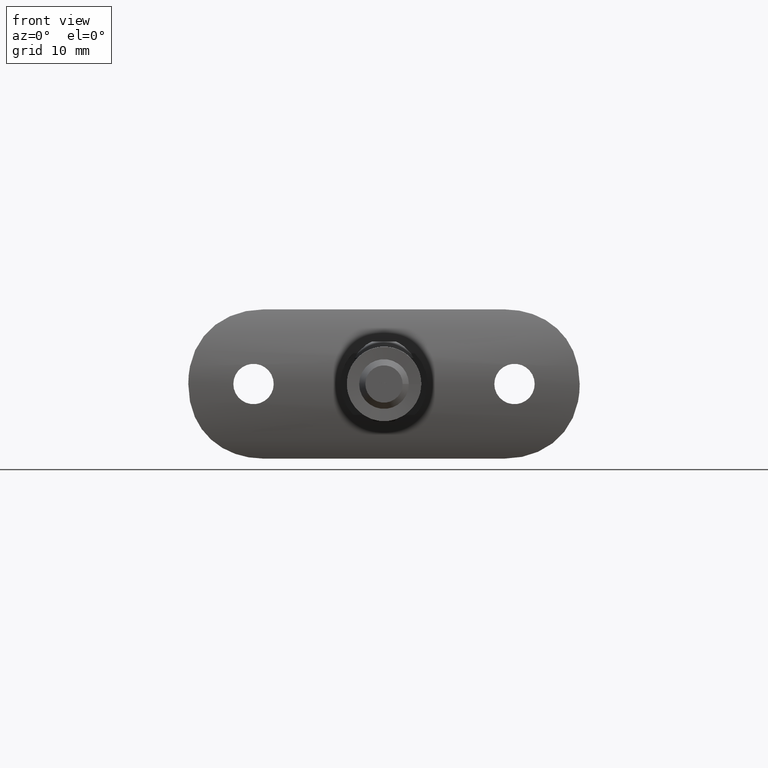
[diagram: clean part render]
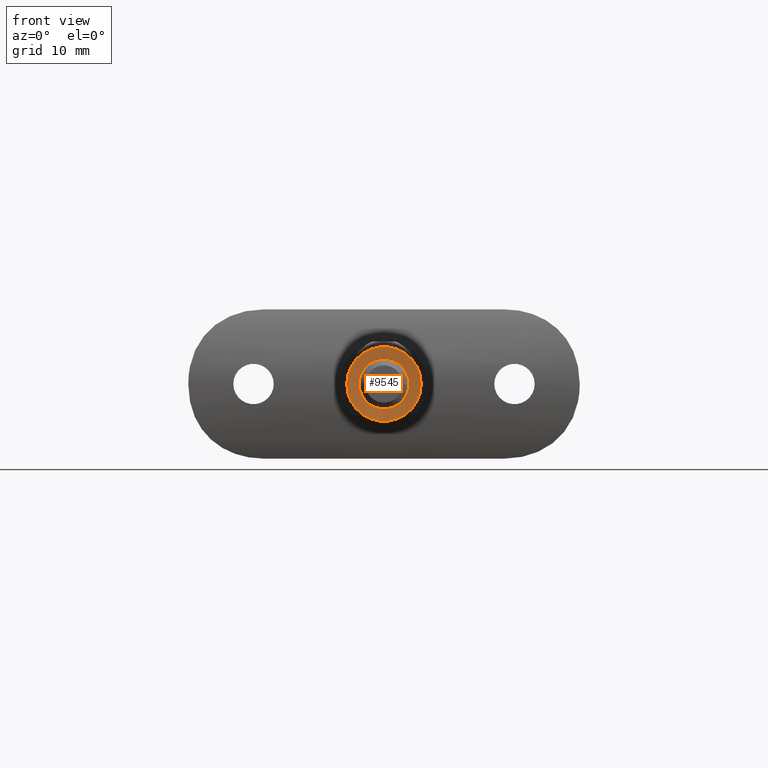
[diagram: same view with one face highlighted and labeled with its STEP entity id]
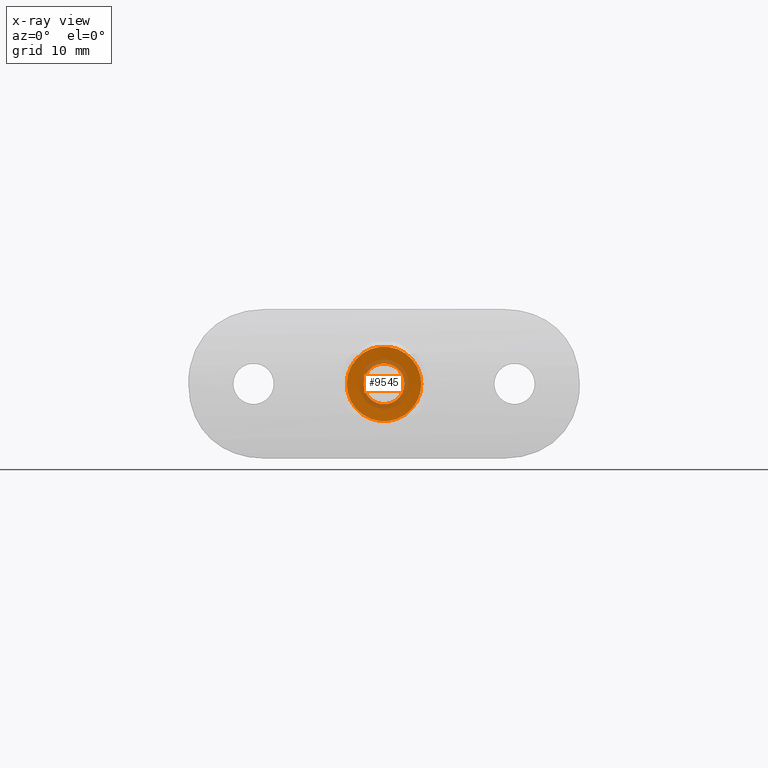
[diagram: x-ray of the same camera — body ghosted, the highlighted face saturated]
A machine part, front view. The second image highlights one B-rep face of the part: STEP entity #9545.
The next image is the same camera in x-ray: the body ghosted, the highlighted face saturated — about 21% of this face is hidden behind the body in this view.
In plain terms, the highlighted conical surface has half-angle 85 deg.
Its self-contained STEP definition (entity closure, byte-faithful):
#514 = EDGE_LOOP ( 'NONE', ( #12717 ) ) ;
#1978 = CARTESIAN_POINT ( 'NONE',  ( 0.000000000000000000, 0.2386875398333721809, 0.000000000000000000 ) ) ;
#2306 = DIRECTION ( 'NONE',  ( -0.000000000000000000, -1.000000000000000000, -0.000000000000000000 ) ) ;
#3344 = CIRCLE ( 'NONE', #12526, 6.000000000000000000 ) ;
#3732 = CARTESIAN_POINT ( 'NONE',  ( 0.000000000000000000, 0.000000000000000000, 0.000000000000000000 ) ) ;
#3788 = DIRECTION ( 'NONE',  ( 0.000000000000000000, 0.000000000000000000, -1.000000000000000000 ) ) ;
#4739 = DIRECTION ( 'NONE',  ( 0.000000000000000000, 0.000000000000000000, -1.000000000000000000 ) ) ;
#5847 = FACE_OUTER_BOUND ( 'NONE', #514, .T. ) ;
#5930 = CARTESIAN_POINT ( 'NONE',  ( 0.000000000000000000, 0.2386875398333721809, 0.000000000000000000 ) ) ;
#6202 = DIRECTION ( 'NONE',  ( -0.000000000000000000, -1.000000000000000000, -0.000000000000000000 ) ) ;
#6305 = EDGE_LOOP ( 'NONE', ( #14989 ) ) ;
#7037 = EDGE_CURVE ( 'NONE', #7807, #7807, #3344, .T. ) ;
#7807 = VERTEX_POINT ( 'NONE', #15833 ) ;
#9004 = AXIS2_PLACEMENT_3D ( 'NONE', #1978, #6202, #15233 ) ;
#9545 = ADVANCED_FACE ( 'NONE', ( #5847, #14438 ), #12089, .F. ) ;
#9550 = VERTEX_POINT ( 'NONE', #13319 ) ;
#9992 = DIRECTION ( 'NONE',  ( -0.000000000000000000, -1.000000000000000000, -0.000000000000000000 ) ) ;
#10753 = EDGE_CURVE ( 'NONE', #9550, #9550, #14410, .T. ) ;
#12089 = CONICAL_SURFACE ( 'NONE', #15048, 3.271788935686913202, 1.483529864195186843 ) ;
#12526 = AXIS2_PLACEMENT_3D ( 'NONE', #3732, #9992, #3788 ) ;
#12717 = ORIENTED_EDGE ( 'NONE', *, *, #7037, .T. ) ;
#13319 = CARTESIAN_POINT ( 'NONE',  ( 0.000000000000000000, 0.2386875398333721809, -3.271788935686913202 ) ) ;
#14410 = CIRCLE ( 'NONE', #9004, 3.271788935686913202 ) ;
#14438 = FACE_BOUND ( 'NONE', #6305, .T. ) ;
#14989 = ORIENTED_EDGE ( 'NONE', *, *, #10753, .F. ) ;
#15048 = AXIS2_PLACEMENT_3D ( 'NONE', #5930, #2306, #4739 ) ;
#15233 = DIRECTION ( 'NONE',  ( 0.000000000000000000, 0.000000000000000000, -1.000000000000000000 ) ) ;
#15833 = CARTESIAN_POINT ( 'NONE',  ( 0.000000000000000000, 0.000000000000000000, -6.000000000000000000 ) ) ;